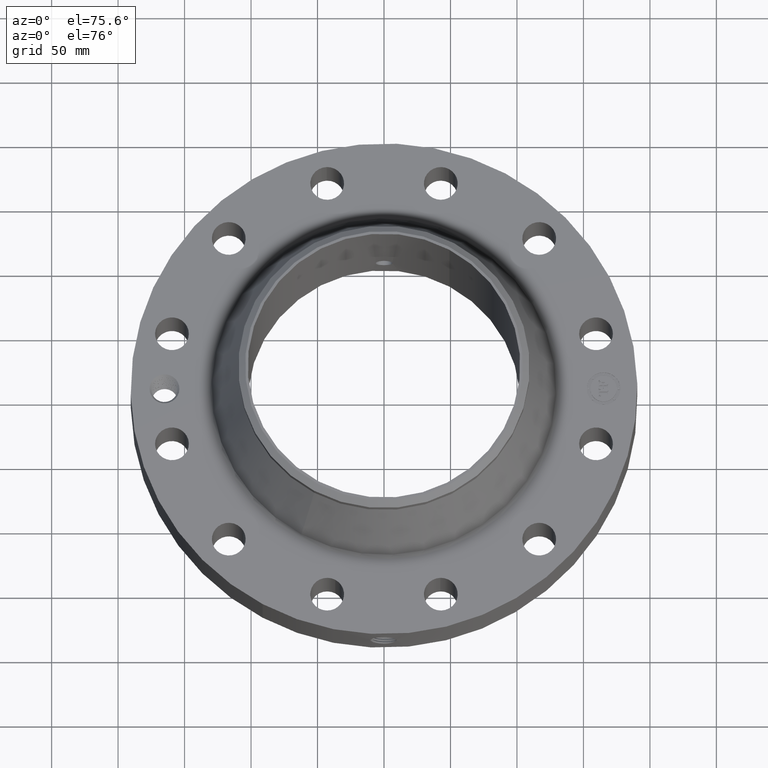
[diagram: clean part render]
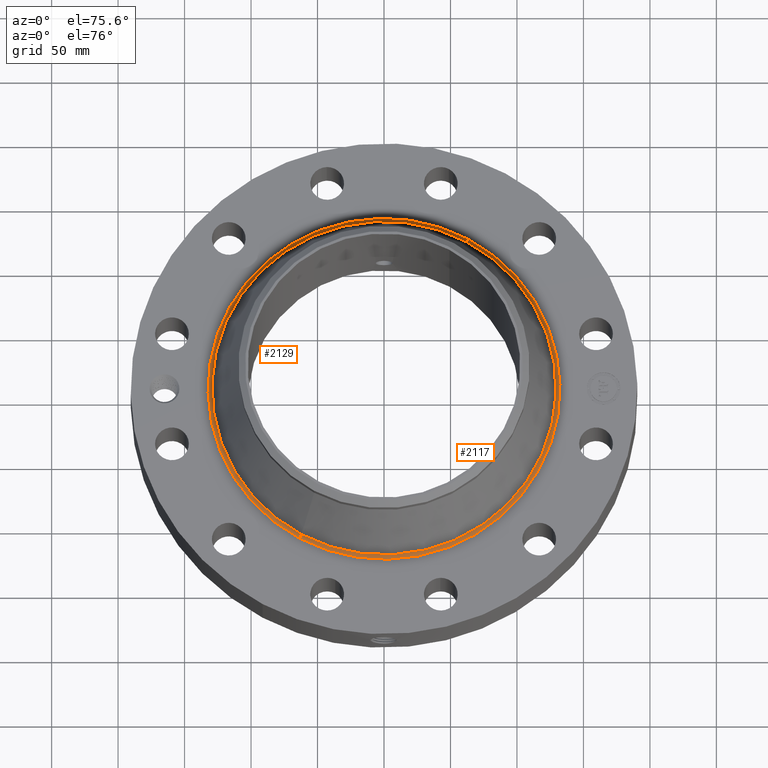
[diagram: same view with one multi-face feature highlighted, each face labeled with its STEP entity id]
A machine part, auxiliary view. The highlighted faces form ONE feature: a constant-radius fillet chain: 2 tangent blend faces with common blend radius 3.048 mm. The faces share edges in the B-rep.
Their STEP definitions:
[1] entity #2117 (Torus):
#584=AXIS2_PLACEMENT_3D('Circle Axis2P3D',#582,#583,$) ;
#2090=AXIS2_PLACEMENT_3D('Torus Axis2P3D',#2087,#2088,#2089) ;
#2094=AXIS2_PLACEMENT_3D('Circle Axis2P3D',#2092,#2093,$) ;
#2101=AXIS2_PLACEMENT_3D('Circle Axis2P3D',#2099,#2100,$) ;
#2108=AXIS2_PLACEMENT_3D('Circle Axis2P3D',#2106,#2107,$) ;
#577=CARTESIAN_POINT('Vertex',(-2.49819019811,-4.57290648414,1.68000000001)) ;
#579=CARTESIAN_POINT('Vertex',(2.49819019811,4.57290648414,1.68000000001)) ;
#582=CARTESIAN_POINT('Axis2P3D Location',(0.,0.,1.68000000001)) ;
#2087=CARTESIAN_POINT('Axis2P3D Location',(0.,0.,1.80000000001)) ;
#2092=CARTESIAN_POINT('Axis2P3D Location',(2.49819019811,4.57290648414,1.80000000001)) ;
#2096=CARTESIAN_POINT('Vertex',(2.44375147146,4.47325706343,1.76118739904)) ;
#2099=CARTESIAN_POINT('Axis2P3D Location',(0.,0.,1.76118739904)) ;
#2103=CARTESIAN_POINT('Vertex',(-2.44375147146,-4.47325706343,1.76118739904)) ;
#2106=CARTESIAN_POINT('Axis2P3D Location',(-2.49819019811,-4.57290648414,1.80000000001)) ;
#583=DIRECTION('Axis2P3D Direction',(0.,0.,-0.0393700787402)) ;
#2088=DIRECTION('Axis2P3D Direction',(0.,0.,-0.0393700787402)) ;
#2089=DIRECTION('Axis2P3D XDirection',(-0.0188750212049,-0.0345504945626,0.)) ;
#2093=DIRECTION('Axis2P3D Direction',(-0.0345504945626,0.0188750212049,0.)) ;
#2100=DIRECTION('Axis2P3D Direction',(0.,0.,-0.0393700787402)) ;
#2107=DIRECTION('Axis2P3D Direction',(0.0345504945626,-0.0188750212049,0.)) ;
#2112=ORIENTED_EDGE('',*,*,#586,.F.) ;
#2113=ORIENTED_EDGE('',*,*,#2098,.T.) ;
#2114=ORIENTED_EDGE('',*,*,#2105,.T.) ;
#2115=ORIENTED_EDGE('',*,*,#2110,.F.) ;
#2117=ADVANCED_FACE('PartBody',(#2116),#2091,.F.) ;
#585=CIRCLE('generated circle',#584,5.2107991689) ;
#2095=CIRCLE('generated circle',#2094,0.12) ;
#2102=CIRCLE('generated circle',#2101,5.09724925914) ;
#2109=CIRCLE('generated circle',#2108,0.12) ;
#2091=TOROIDAL_SURFACE('homeo Torus',#2090,5.2107991689,0.12) ;
#586=EDGE_CURVE('',#580,#578,#585,.T.) ;
#2098=EDGE_CURVE('',#580,#2097,#2095,.T.) ;
#2105=EDGE_CURVE('',#2097,#2104,#2102,.T.) ;
#2110=EDGE_CURVE('',#578,#2104,#2109,.T.) ;
#2111=EDGE_LOOP('',(#2112,#2113,#2114,#2115)) ;
#2116=FACE_OUTER_BOUND('',#2111,.T.) ;
#578=VERTEX_POINT('',#577) ;
#580=VERTEX_POINT('',#579) ;
#2097=VERTEX_POINT('',#2096) ;
#2104=VERTEX_POINT('',#2103) ;
[2] entity #2129 (Torus):
#575=AXIS2_PLACEMENT_3D('Circle Axis2P3D',#573,#574,$) ;
#2090=AXIS2_PLACEMENT_3D('Torus Axis2P3D',#2087,#2088,#2089) ;
#2094=AXIS2_PLACEMENT_3D('Circle Axis2P3D',#2092,#2093,$) ;
#2108=AXIS2_PLACEMENT_3D('Circle Axis2P3D',#2106,#2107,$) ;
#2120=AXIS2_PLACEMENT_3D('Circle Axis2P3D',#2118,#2119,$) ;
#573=CARTESIAN_POINT('Axis2P3D Location',(0.,0.,1.68000000001)) ;
#577=CARTESIAN_POINT('Vertex',(-2.49819019811,-4.57290648414,1.68000000001)) ;
#579=CARTESIAN_POINT('Vertex',(2.49819019811,4.57290648414,1.68000000001)) ;
#2087=CARTESIAN_POINT('Axis2P3D Location',(0.,0.,1.80000000001)) ;
#2092=CARTESIAN_POINT('Axis2P3D Location',(2.49819019811,4.57290648414,1.80000000001)) ;
#2096=CARTESIAN_POINT('Vertex',(2.44375147146,4.47325706343,1.76118739904)) ;
#2103=CARTESIAN_POINT('Vertex',(-2.44375147146,-4.47325706343,1.76118739904)) ;
#2106=CARTESIAN_POINT('Axis2P3D Location',(-2.49819019811,-4.57290648414,1.80000000001)) ;
#2118=CARTESIAN_POINT('Axis2P3D Location',(0.,0.,1.76118739904)) ;
#574=DIRECTION('Axis2P3D Direction',(0.,0.,-0.0393700787402)) ;
#2088=DIRECTION('Axis2P3D Direction',(0.,0.,-0.0393700787402)) ;
#2089=DIRECTION('Axis2P3D XDirection',(-0.0188750212049,-0.0345504945626,0.)) ;
#2093=DIRECTION('Axis2P3D Direction',(-0.0345504945626,0.0188750212049,0.)) ;
#2107=DIRECTION('Axis2P3D Direction',(0.0345504945626,-0.0188750212049,0.)) ;
#2119=DIRECTION('Axis2P3D Direction',(0.,0.,-0.0393700787402)) ;
#2124=ORIENTED_EDGE('',*,*,#581,.F.) ;
#2125=ORIENTED_EDGE('',*,*,#2110,.T.) ;
#2126=ORIENTED_EDGE('',*,*,#2122,.T.) ;
#2127=ORIENTED_EDGE('',*,*,#2098,.F.) ;
#2129=ADVANCED_FACE('PartBody',(#2128),#2091,.F.) ;
#576=CIRCLE('generated circle',#575,5.2107991689) ;
#2095=CIRCLE('generated circle',#2094,0.12) ;
#2109=CIRCLE('generated circle',#2108,0.12) ;
#2121=CIRCLE('generated circle',#2120,5.09724925914) ;
#2091=TOROIDAL_SURFACE('homeo Torus',#2090,5.2107991689,0.12) ;
#581=EDGE_CURVE('',#578,#580,#576,.T.) ;
#2098=EDGE_CURVE('',#580,#2097,#2095,.T.) ;
#2110=EDGE_CURVE('',#578,#2104,#2109,.T.) ;
#2122=EDGE_CURVE('',#2104,#2097,#2121,.T.) ;
#2123=EDGE_LOOP('',(#2124,#2125,#2126,#2127)) ;
#2128=FACE_OUTER_BOUND('',#2123,.T.) ;
#578=VERTEX_POINT('',#577) ;
#580=VERTEX_POINT('',#579) ;
#2097=VERTEX_POINT('',#2096) ;
#2104=VERTEX_POINT('',#2103) ;